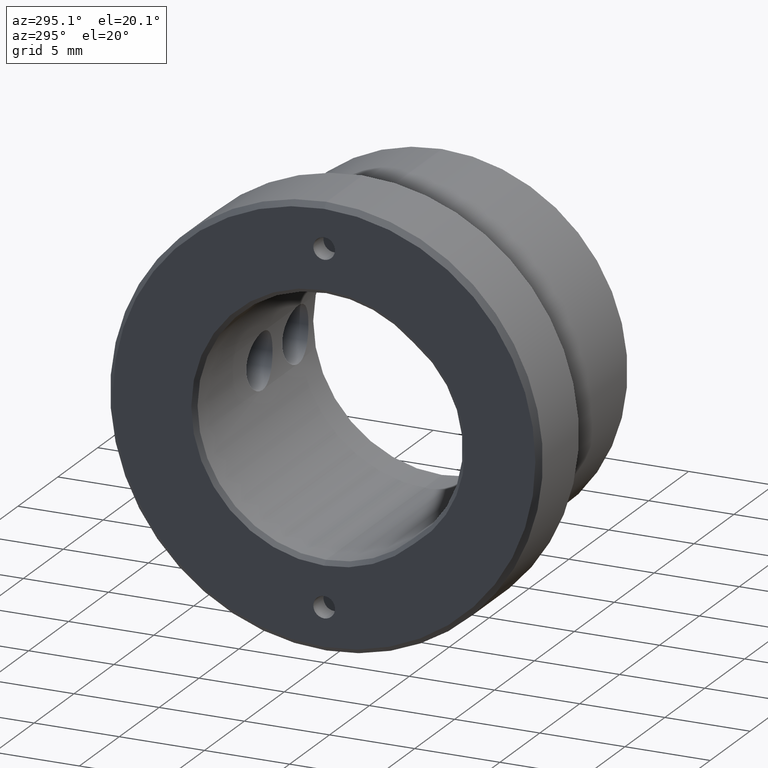
[diagram: clean part render]
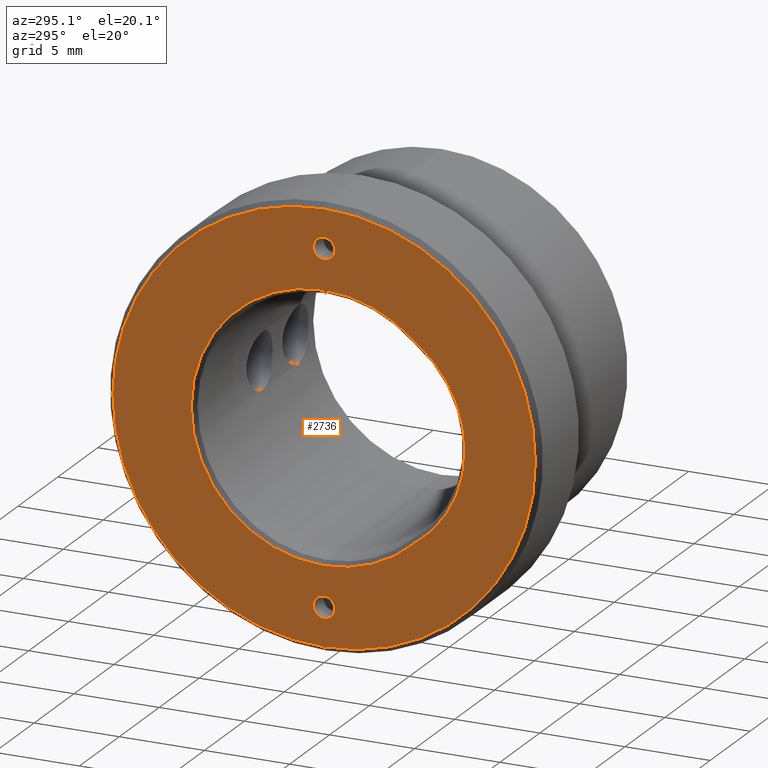
[diagram: same view with one face highlighted and labeled with its STEP entity id]
A machine part, auxiliary view. The second image highlights one B-rep face of the part: STEP entity #2736.
In plain terms, the highlighted planar face has unit normal (1, 0, 0).
Its self-contained STEP definition (entity closure, byte-faithful):
#36 = VERTEX_POINT ( 'NONE', #966 ) ;
#102 = DIRECTION ( 'NONE',  ( 1.000000000000000000, 0.0000000000000000000, 0.0000000000000000000 ) ) ;
#143 = DIRECTION ( 'NONE',  ( 0.0000000000000000000, 0.0000000000000000000, -1.000000000000000000 ) ) ;
#168 = AXIS2_PLACEMENT_3D ( 'NONE', #777, #428, #143 ) ;
#183 = CARTESIAN_POINT ( 'NONE',  ( 0.0000000000000000000, -5.296417322834632700, -5.726077500556304000 ) ) ;
#184 = DIRECTION ( 'NONE',  ( 0.0000000000000000000, 0.0000000000000000000, -1.000000000000000000 ) ) ;
#201 = CARTESIAN_POINT ( 'NONE',  ( 0.0000000000000000000, -1.243016501134563700E-015, 10.15000000000000000 ) ) ;
#272 = CIRCLE ( 'NONE', #2371, 7.799999999999994500 ) ;
#275 = CARTESIAN_POINT ( 'NONE',  ( 0.0000000000000000000, -1.243016501134563700E-015, -9.515000000000000600 ) ) ;
#297 = AXIS2_PLACEMENT_3D ( 'NONE', #3168, #3792, #1288 ) ;
#337 = VERTEX_POINT ( 'NONE', #1906 ) ;
#378 = VERTEX_POINT ( 'NONE', #2826 ) ;
#383 = EDGE_LOOP ( 'NONE', ( #1613, #3174 ) ) ;
#384 = CARTESIAN_POINT ( 'NONE',  ( 0.0000000000000000000, 0.0000000000000000000, -12.40000000000000200 ) ) ;
#410 = CARTESIAN_POINT ( 'NONE',  ( 0.0000000000000000000, 0.0000000000000000000, 0.0000000000000000000 ) ) ;
#428 = DIRECTION ( 'NONE',  ( 1.000000000000000000, 0.0000000000000000000, 0.0000000000000000000 ) ) ;
#467 = FACE_OUTER_BOUND ( 'NONE', #3624, .T. ) ;
#474 = CIRCLE ( 'NONE', #1382, 0.6350000000000001200 ) ;
#486 = DIRECTION ( 'NONE',  ( 1.000000000000000000, 0.0000000000000000000, 0.0000000000000000000 ) ) ;
#513 = AXIS2_PLACEMENT_3D ( 'NONE', #410, #1013, #2562 ) ;
#530 = VERTEX_POINT ( 'NONE', #2573 ) ;
#540 = CARTESIAN_POINT ( 'NONE',  ( 0.0000000000000000000, 0.0000000000000000000, 0.0000000000000000000 ) ) ;
#658 = CIRCLE ( 'NONE', #698, 0.6350000000000001200 ) ;
#685 = ORIENTED_EDGE ( 'NONE', *, *, #1686, .T. ) ;
#690 = DIRECTION ( 'NONE',  ( 0.0000000000000000000, 0.0000000000000000000, -1.000000000000000000 ) ) ;
#698 = AXIS2_PLACEMENT_3D ( 'NONE', #3497, #2869, #2552 ) ;
#703 = PLANE ( 'NONE',  #513 ) ;
#741 = EDGE_LOOP ( 'NONE', ( #1608, #2204, #685, #2492 ) ) ;
#777 = CARTESIAN_POINT ( 'NONE',  ( 0.0000000000000000000, 0.0000000000000000000, 0.0000000000000000000 ) ) ;
#792 = CARTESIAN_POINT ( 'NONE',  ( 0.0000000000000000000, 1.536931732929928400E-015, 12.40000000000000200 ) ) ;
#812 = CIRCLE ( 'NONE', #3660, 12.40000000000000200 ) ;
#850 = EDGE_CURVE ( 'NONE', #530, #1515, #272, .T. ) ;
#865 = CIRCLE ( 'NONE', #2889, 6.999999999999995600 ) ;
#874 = ORIENTED_EDGE ( 'NONE', *, *, #1480, .T. ) ;
#966 = CARTESIAN_POINT ( 'NONE',  ( 0.0000000000000000000, -1.165251429388706600E-015, 9.515000000000000600 ) ) ;
#1006 = AXIS2_PLACEMENT_3D ( 'NONE', #3633, #3023, #1154 ) ;
#1013 = DIRECTION ( 'NONE',  ( 1.000000000000000000, 0.0000000000000000000, 0.0000000000000000000 ) ) ;
#1031 = DIRECTION ( 'NONE',  ( -1.000000000000000000, -0.0000000000000000000, -0.0000000000000000000 ) ) ;
#1055 = EDGE_CURVE ( 'NONE', #36, #378, #474, .T. ) ;
#1071 = CARTESIAN_POINT ( 'NONE',  ( 0.0000000000000000000, 0.0000000000000000000, 0.0000000000000000000 ) ) ;
#1154 = DIRECTION ( 'NONE',  ( 0.0000000000000000000, 0.0000000000000000000, 1.000000000000000000 ) ) ;
#1169 = CARTESIAN_POINT ( 'NONE',  ( 0.0000000000000000000, -5.296417322834636300, 5.726077500556301400 ) ) ;
#1264 = VERTEX_POINT ( 'NONE', #275 ) ;
#1288 = DIRECTION ( 'NONE',  ( 0.0000000000000000000, 0.0000000000000000000, -1.000000000000000000 ) ) ;
#1382 = AXIS2_PLACEMENT_3D ( 'NONE', #201, #3621, #3921 ) ;
#1469 = ORIENTED_EDGE ( 'NONE', *, *, #1055, .F. ) ;
#1480 = EDGE_CURVE ( 'NONE', #1949, #3163, #812, .T. ) ;
#1484 = AXIS2_PLACEMENT_3D ( 'NONE', #1071, #2326, #2022 ) ;
#1515 = VERTEX_POINT ( 'NONE', #2884 ) ;
#1537 = EDGE_CURVE ( 'NONE', #3766, #2013, #865, .T. ) ;
#1608 = ORIENTED_EDGE ( 'NONE', *, *, #3713, .T. ) ;
#1613 = ORIENTED_EDGE ( 'NONE', *, *, #3251, .F. ) ;
#1686 = EDGE_CURVE ( 'NONE', #1515, #3766, #1933, .T. ) ;
#1886 = FACE_BOUND ( 'NONE', #383, .T. ) ;
#1906 = CARTESIAN_POINT ( 'NONE',  ( 0.0000000000000000000, -1.165251429388706600E-015, -10.78500000000000200 ) ) ;
#1933 = CIRCLE ( 'NONE', #168, 7.799999999999994500 ) ;
#1949 = VERTEX_POINT ( 'NONE', #792 ) ;
#1975 = CARTESIAN_POINT ( 'NONE',  ( 0.0000000000000000000, -1.270000000000000000, 1.555301434917138600E-016 ) ) ;
#2013 = VERTEX_POINT ( 'NONE', #183 ) ;
#2022 = DIRECTION ( 'NONE',  ( 0.0000000000000000000, 0.0000000000000000000, -1.000000000000000000 ) ) ;
#2056 = EDGE_CURVE ( 'NONE', #337, #1264, #2850, .T. ) ;
#2133 = FACE_BOUND ( 'NONE', #2353, .T. ) ;
#2180 = CIRCLE ( 'NONE', #1484, 12.40000000000000200 ) ;
#2204 = ORIENTED_EDGE ( 'NONE', *, *, #850, .T. ) ;
#2265 = EDGE_CURVE ( 'NONE', #378, #36, #3252, .T. ) ;
#2326 = DIRECTION ( 'NONE',  ( -1.000000000000000000, -0.0000000000000000000, -0.0000000000000000000 ) ) ;
#2353 = EDGE_LOOP ( 'NONE', ( #3273, #1469 ) ) ;
#2371 = AXIS2_PLACEMENT_3D ( 'NONE', #540, #2675, #3351 ) ;
#2492 = ORIENTED_EDGE ( 'NONE', *, *, #1537, .T. ) ;
#2552 = DIRECTION ( 'NONE',  ( 0.0000000000000000000, 0.0000000000000000000, 1.000000000000000000 ) ) ;
#2562 = DIRECTION ( 'NONE',  ( 0.0000000000000000000, 0.0000000000000000000, -1.000000000000000000 ) ) ;
#2573 = CARTESIAN_POINT ( 'NONE',  ( 0.0000000000000000000, 9.552245033349348700E-016, -7.799999999999994500 ) ) ;
#2675 = DIRECTION ( 'NONE',  ( 1.000000000000000000, 0.0000000000000000000, 0.0000000000000000000 ) ) ;
#2677 = ORIENTED_EDGE ( 'NONE', *, *, #3441, .T. ) ;
#2736 = ADVANCED_FACE ( 'NONE', ( #2133, #1886, #3154, #467 ), #703, .F. ) ;
#2826 = CARTESIAN_POINT ( 'NONE',  ( 0.0000000000000000000, -1.243016501134563700E-015, 10.78500000000000200 ) ) ;
#2850 = CIRCLE ( 'NONE', #1006, 0.6350000000000001200 ) ;
#2869 = DIRECTION ( 'NONE',  ( -1.000000000000000000, 0.0000000000000000000, 0.0000000000000000000 ) ) ;
#2884 = CARTESIAN_POINT ( 'NONE',  ( 0.0000000000000000000, 0.0000000000000000000, 7.799999999999994500 ) ) ;
#2889 = AXIS2_PLACEMENT_3D ( 'NONE', #1975, #102, #690 ) ;
#3023 = DIRECTION ( 'NONE',  ( -1.000000000000000000, 0.0000000000000000000, 0.0000000000000000000 ) ) ;
#3109 = CIRCLE ( 'NONE', #3286, 7.799999999999994500 ) ;
#3154 = FACE_BOUND ( 'NONE', #741, .T. ) ;
#3163 = VERTEX_POINT ( 'NONE', #384 ) ;
#3168 = CARTESIAN_POINT ( 'NONE',  ( 0.0000000000000000000, -1.243016501134563700E-015, 10.15000000000000000 ) ) ;
#3174 = ORIENTED_EDGE ( 'NONE', *, *, #2056, .F. ) ;
#3251 = EDGE_CURVE ( 'NONE', #1264, #337, #658, .T. ) ;
#3252 = CIRCLE ( 'NONE', #297, 0.6350000000000001200 ) ;
#3273 = ORIENTED_EDGE ( 'NONE', *, *, #2265, .F. ) ;
#3286 = AXIS2_PLACEMENT_3D ( 'NONE', #3330, #486, #184 ) ;
#3330 = CARTESIAN_POINT ( 'NONE',  ( 0.0000000000000000000, 0.0000000000000000000, 0.0000000000000000000 ) ) ;
#3351 = DIRECTION ( 'NONE',  ( 0.0000000000000000000, 0.0000000000000000000, -1.000000000000000000 ) ) ;
#3441 = EDGE_CURVE ( 'NONE', #3163, #1949, #2180, .T. ) ;
#3497 = CARTESIAN_POINT ( 'NONE',  ( -0.0000000000000000000, -1.243016501134563700E-015, -10.15000000000000000 ) ) ;
#3510 = CARTESIAN_POINT ( 'NONE',  ( 0.0000000000000000000, 0.0000000000000000000, 0.0000000000000000000 ) ) ;
#3621 = DIRECTION ( 'NONE',  ( -1.000000000000000000, 0.0000000000000000000, 0.0000000000000000000 ) ) ;
#3624 = EDGE_LOOP ( 'NONE', ( #2677, #874 ) ) ;
#3633 = CARTESIAN_POINT ( 'NONE',  ( -0.0000000000000000000, -1.243016501134563700E-015, -10.15000000000000000 ) ) ;
#3660 = AXIS2_PLACEMENT_3D ( 'NONE', #3510, #1031, #3800 ) ;
#3713 = EDGE_CURVE ( 'NONE', #2013, #530, #3109, .T. ) ;
#3766 = VERTEX_POINT ( 'NONE', #1169 ) ;
#3792 = DIRECTION ( 'NONE',  ( -1.000000000000000000, 0.0000000000000000000, 0.0000000000000000000 ) ) ;
#3800 = DIRECTION ( 'NONE',  ( 0.0000000000000000000, 0.0000000000000000000, -1.000000000000000000 ) ) ;
#3921 = DIRECTION ( 'NONE',  ( 0.0000000000000000000, 0.0000000000000000000, -1.000000000000000000 ) ) ;